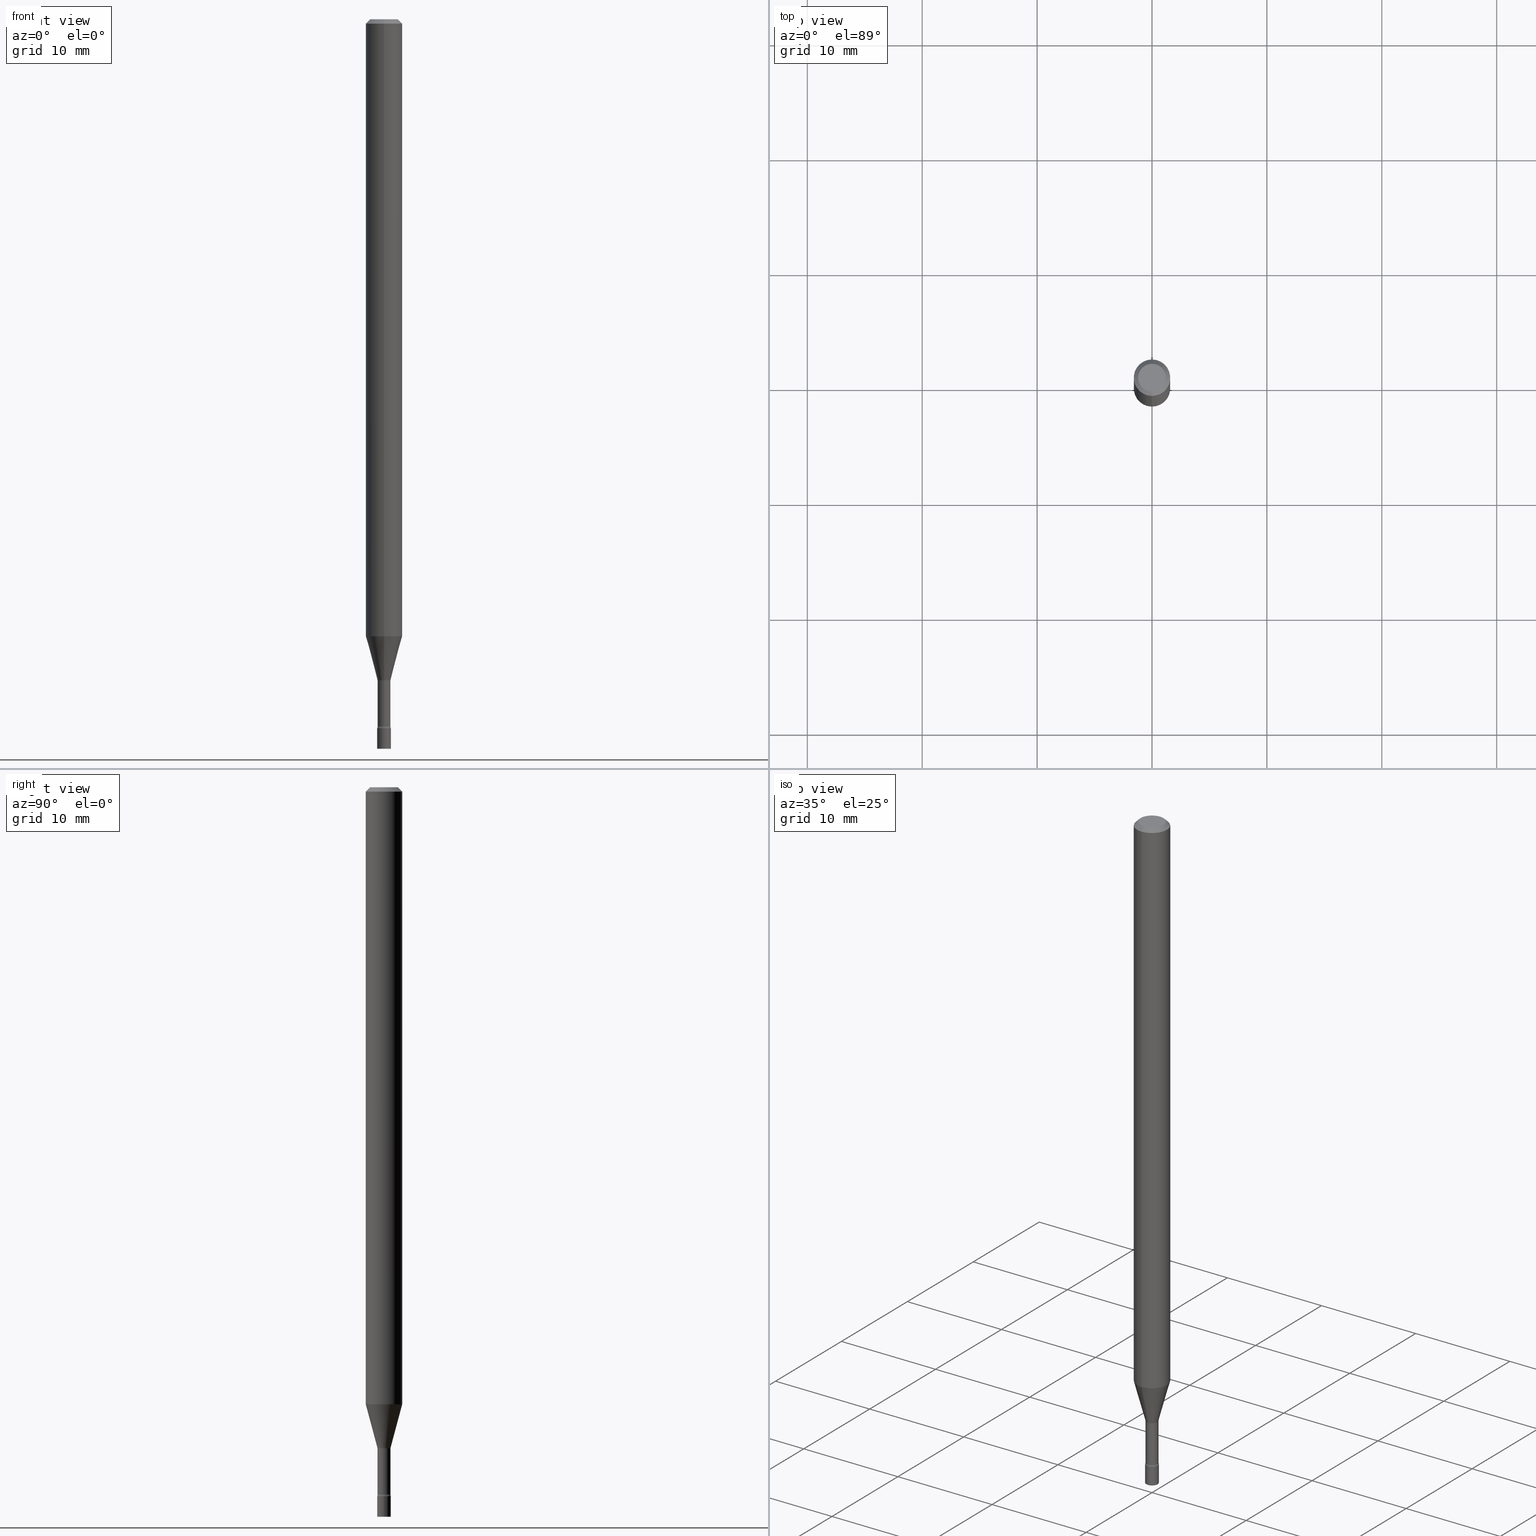
[diagram: canonical four-view strip — front | top / right | iso, engineering-drawing reading convention]
A machine part, canonical four-view strip (front | top / right | iso — engineering-drawing reading convention). The complete STEP part file that produces these views, byte-faithful:
ISO-10303-21;
HEADER;
FILE_DESCRIPTION (( 'STEP AP203' ),
    '1' );
FILE_NAME ('09663.STEP',
    '2024-03-09T00:32:37',
    ( '' ),
    ( '' ),
    'SwSTEP 2.0',
    'SolidWorks 2023',
    '' );
FILE_SCHEMA (( 'CONFIG_CONTROL_DESIGN' ));
ENDSEC;

DATA;
#1 =( NAMED_UNIT ( * ) SI_UNIT ( $, .STERADIAN. ) SOLID_ANGLE_UNIT ( ) );
#2 = LOCAL_TIME ( 19, 32, 37.00000000000000000, #404 ) ;
#3 = DIRECTION ( 'NONE',  ( 1.000000000000000000, 0.000000000000000000, 0.000000000000000000 ) ) ;
#4 = LINE ( 'NONE', #153, #252 ) ;
#5 = EDGE_LOOP ( 'NONE', ( #95, #102, #19, #335 ) ) ;
#6 = DIRECTION ( 'NONE',  ( -6.982962677686265922E-15, -1.000000000000000000, 0.000000000000000000 ) ) ;
#7 = ORIENTED_EDGE ( 'NONE', *, *, #67, .F. ) ;
#8 = APPROVAL_ROLE ( '' ) ;
#9 = CARTESIAN_POINT ( 'NONE',  ( -4.364351673553912750E-16, -0.06250000000000005551, -0.01499999999999981209 ) ) ;
#10 = ORIENTED_EDGE ( 'NONE', *, *, #82, .T. ) ;
#11 = CONICAL_SURFACE ( 'NONE', #156, 0.06250000000000000000, 0.7853981633974483900 ) ;
#12 = CIRCLE ( 'NONE', #311, 0.02210000000000007098 ) ;
#13 = DATE_AND_TIME ( #132, #367 ) ;
#14 = DIRECTION ( 'NONE',  ( -2.445468806185136597E-29, 3.491481338843145583E-15, 1.000000000000000000 ) ) ;
#15 = ORIENTED_EDGE ( 'NONE', *, *, #82, .F. ) ;
#16 = DIRECTION ( 'NONE',  ( -6.982962677686265133E-15, -1.000000000000000000, 0.000000000000000000 ) ) ;
#17 = ORIENTED_EDGE ( 'NONE', *, *, #381, .F. ) ;
#18 = FACE_OUTER_BOUND ( 'NONE', #375, .T. ) ;
#19 = ORIENTED_EDGE ( 'NONE', *, *, #87, .T. ) ;
#20 = ADVANCED_FACE ( 'NONE', ( #175 ), #219, .F. ) ;
#21 = CLOSED_SHELL ( 'NONE', ( #347, #135, #59, #451, #144, #240, #390, #262, #336, #426, #444, #477, #355, #20 ) ) ;
#22 = FACE_OUTER_BOUND ( 'NONE', #516, .T. ) ;
#23 = AXIS2_PLACEMENT_3D ( 'NONE', #291, #452, #249 ) ;
#24 = ORIENTED_EDGE ( 'NONE', *, *, #164, .T. ) ;
#25 = APPROVAL ( #486, 'UNSPECIFIED' ) ;
#26 = FACE_OUTER_BOUND ( 'NONE', #89, .T. ) ;
#27 = DIRECTION ( 'NONE',  ( -6.982962677686265922E-15, -1.000000000000000000, 3.491494143609276784E-15 ) ) ;
#28 = ADVANCED_FACE ( 'NONE', ( #299 ), #57, .T. ) ;
#29 = CC_DESIGN_APPROVAL ( #510, ( #304 ) ) ;
#30 = PLANE ( 'NONE',  #196 ) ;
#31 = CC_DESIGN_PERSON_AND_ORGANIZATION_ASSIGNMENT ( #278, #394, ( #359 ) ) ;
#32 = CONICAL_SURFACE ( 'NONE', #473, 0.06250000000000000000, 0.7853981633974483900 ) ;
#33 = CARTESIAN_POINT ( 'NONE',  ( 5.534301883144486809E-29, -7.901574216436330678E-15, -2.263092501787272948 ) ) ;
#34 = DIRECTION ( 'NONE',  ( -2.445459864664737566E-29, 3.491494143609276390E-15, 1.000000000000000000 ) ) ;
#35 = EDGE_CURVE ( 'NONE', #316, #280, #487, .T. ) ;
#36 = CARTESIAN_POINT ( 'NONE',  ( 0.000000000000000000, 0.000000000000000000, 0.000000000000000000 ) ) ;
#37 = DIRECTION ( 'NONE',  ( 1.000000000000000000, -6.982962677686265922E-15, 4.876176775795935793E-29 ) ) ;
#38 = AXIS2_PLACEMENT_3D ( 'NONE', #363, #236, #398 ) ;
#39 = CARTESIAN_POINT ( 'NONE',  ( 0.02350000000000000352, -1.640996229256272766E-16, 1.145901542312045115E-30 ) ) ;
#40 = ORIENTED_EDGE ( 'NONE', *, *, #67, .T. ) ;
#41 = ADVANCED_FACE ( 'NONE', ( #157 ), #351, .T. ) ;
#42 = LINE ( 'NONE', #194, #361 ) ;
#43 = EDGE_LOOP ( 'NONE', ( #288, #163, #237, #217 ) ) ;
#44 =( LENGTH_UNIT ( ) NAMED_UNIT ( * ) SI_UNIT ( $, .METRE. ) );
#45 = APPROVAL_PERSON_ORGANIZATION ( #447, #510, #8 ) ;
#46 = EDGE_LOOP ( 'NONE', ( #91, #482, #402, #364 ) ) ;
#47 = AXIS2_PLACEMENT_3D ( 'NONE', #438, #476, #117 ) ;
#48 = CARTESIAN_POINT ( 'NONE',  ( 5.534301883144486809E-29, -7.901574216436330678E-15, -2.263092501787272948 ) ) ;
#49 = CARTESIAN_POINT ( 'NONE',  ( -1.578925554262576832E-16, -0.02261111260567187989, -2.263092501787272948 ) ) ;
#50 = ORIENTED_EDGE ( 'NONE', *, *, #100, .T. ) ;
#51 = DIRECTION ( 'NONE',  ( -6.982962677686265922E-15, -1.000000000000000000, 0.000000000000000000 ) ) ;
#52 = EDGE_LOOP ( 'NONE', ( #370, #24, #425, #7 ) ) ;
#53 = DIRECTION ( 'NONE',  ( -6.982962677686265133E-15, -1.000000000000000000, 0.000000000000000000 ) ) ;
#54 = VERTEX_POINT ( 'NONE', #242 ) ;
#55 = CIRCLE ( 'NONE', #107, 0.02210000000000000159 ) ;
#56 = FACE_OUTER_BOUND ( 'NONE', #235, .T. ) ;
#57 = PLANE ( 'NONE',  #285 ) ;
#58 = DIRECTION ( 'NONE',  ( -2.445459864664737566E-29, 3.491494143609276390E-15, 1.000000000000000000 ) ) ;
#59 = ADVANCED_FACE ( 'NONE', ( #198 ), #275, .F. ) ;
#60 = ORIENTED_EDGE ( 'NONE', *, *, #201, .F. ) ;
#61 = DIRECTION ( 'NONE',  ( 1.000000000000000000, -6.982962677686228056E-15, 0.000000000000000000 ) ) ;
#62 = EDGE_LOOP ( 'NONE', ( #496, #126, #10, #241 ) ) ;
#63 = CC_DESIGN_PERSON_AND_ORGANIZATION_ASSIGNMENT ( #475, #78, ( #250 ) ) ;
#64 = VECTOR ( 'NONE', #282, 39.37007874015748143 ) ;
#65 = AXIS2_PLACEMENT_3D ( 'NONE', #33, #265, #229 ) ;
#66 = CARTESIAN_POINT ( 'NONE',  ( 1.640996229256866630E-16, 0.02349999999999152073, -2.429000000000000270 ) ) ;
#67 = EDGE_CURVE ( 'NONE', #488, #243, #234, .T. ) ;
#68 = DIRECTION ( 'NONE',  ( -4.851104656540964275E-15, -0.7071067811865500152, -0.7071067811865450192 ) ) ;
#69 = CARTESIAN_POINT ( 'NONE',  ( 7.070632131136643894E-46, -1.009506270546119456E-31, -2.891330270147777573E-17 ) ) ;
#70 = CIRCLE ( 'NONE', #227, 0.06250000000000000000 ) ;
#71 = DIRECTION ( 'NONE',  ( -2.445459864664737566E-29, 3.491494143609276784E-15, 1.000000000000000000 ) ) ;
#72 = CIRCLE ( 'NONE', #267, 0.02350000000000000352 ) ;
#73 = CARTESIAN_POINT ( 'NONE',  ( -1.543234751768077413E-16, -0.02210000000000852949, -2.422672283192177645 ) ) ;
#74 = EDGE_CURVE ( 'NONE', #283, #439, #165, .T. ) ;
#75 = MANIFOLD_SOLID_BREP ( 'Body-Move/Copy2[1]', #436 ) ;
#76 = MECHANICAL_CONTEXT ( 'NONE', #162, 'mechanical' ) ;
#77 = CARTESIAN_POINT ( 'NONE',  ( -1.640996229255678655E-16, -0.02350000000000847938, -2.429000000000000270 ) ) ;
#78 = PERSON_AND_ORGANIZATION_ROLE ( 'creator' ) ;
#79 = APPROVAL_PERSON_ORGANIZATION ( #433, #264, #269 ) ;
#80 = AXIS2_PLACEMENT_3D ( 'NONE', #94, #368, #494 ) ;
#81 = EDGE_LOOP ( 'NONE', ( #292, #251 ) ) ;
#82 = EDGE_CURVE ( 'NONE', #342, #243, #209, .T. ) ;
#83 = DIRECTION ( 'NONE',  ( -6.982962677686265922E-15, -1.000000000000000000, 4.370956789862821150E-15 ) ) ;
#84 = DIRECTION ( 'NONE',  ( -1.807323732225329350E-15, -0.2588190451025180194, 0.9659258262890689783 ) ) ;
#85 = ORIENTED_EDGE ( 'NONE', *, *, #393, .F. ) ;
#86 = DIRECTION ( 'NONE',  ( -2.445459864664737566E-29, 3.491494143609276390E-15, 1.000000000000000000 ) ) ;
#87 = EDGE_CURVE ( 'NONE', #342, #379, #395, .T. ) ;
#88 = DIRECTION ( 'NONE',  ( -6.982962677686265922E-15, -1.000000000000000000, 0.000000000000000000 ) ) ;
#89 = EDGE_LOOP ( 'NONE', ( #276, #118, #435, #200 ) ) ;
#90 = DIRECTION ( 'NONE',  ( -6.982962677686265922E-15, -1.000000000000000000, 0.000000000000000000 ) ) ;
#91 = ORIENTED_EDGE ( 'NONE', *, *, #320, .F. ) ;
#92 = EDGE_CURVE ( 'NONE', #407, #179, #97, .T. ) ;
#93 = APPROVAL_DATE_TIME ( #213, #510 ) ;
#94 = CARTESIAN_POINT ( 'NONE',  ( 2.636113549670525938E-16, 0.03709999999999209069, -2.266974787463810870 ) ) ;
#95 = ORIENTED_EDGE ( 'NONE', *, *, #100, .F. ) ;
#96 = DIRECTION ( 'NONE',  ( -2.445459864664737566E-29, 3.491494143609276390E-15, 1.000000000000000000 ) ) ;
#97 = CIRCLE ( 'NONE', #38, 0.06250000000000000000 ) ;
#98 = CONICAL_SURFACE ( 'NONE', #403, 0.02261111260566397996, 0.2617993877991501850 ) ;
#99 = AXIS2_PLACEMENT_3D ( 'NONE', #429, #71, #27 ) ;
#100 = EDGE_CURVE ( 'NONE', #54, #301, #4, .T. ) ;
#101 = CARTESIAN_POINT ( 'NONE',  ( 5.924547833782153992E-29, -8.458746088650004538E-15, -2.422672283192177645 ) ) ;
#102 = ORIENTED_EDGE ( 'NONE', *, *, #388, .T. ) ;
#103 = CALENDAR_DATE ( 2024, 8, 3 ) ;
#104 = DIRECTION ( 'NONE',  ( -2.445459864664737566E-29, 3.491494143609276784E-15, 1.000000000000000000 ) ) ;
#105 = DIRECTION ( 'NONE',  ( 2.438088387897960049E-29, -3.491481338843145188E-15, -1.000000000000000000 ) ) ;
#106 = CARTESIAN_POINT ( 'NONE',  ( 3.316907271900976096E-16, 0.04749999999999999362, -1.803026231721795148E-16 ) ) ;
#107 = AXIS2_PLACEMENT_3D ( 'NONE', #185, #505, #346 ) ;
#108 = CONICAL_SURFACE ( 'NONE', #467, 0.02261111260566397996, 0.2617993877991501850 ) ;
#109 = DIRECTION ( 'NONE',  ( 2.445459864664737566E-29, -3.491494143609276390E-15, -1.000000000000000000 ) ) ;
#110 = DIRECTION ( 'NONE',  ( -2.445459864664737566E-29, 3.491494143609276784E-15, 1.000000000000000000 ) ) ;
#111 = CARTESIAN_POINT ( 'NONE',  ( 5.924569496155794395E-29, -8.458715066898005273E-15, -2.422672283192177645 ) ) ;
#112 = PLANE ( 'NONE',  #497 ) ;
#113 = EDGE_CURVE ( 'NONE', #215, #407, #42, .T. ) ;
#114 = AXIS2_PLACEMENT_3D ( 'NONE', #421, #503, #61 ) ;
#115 = APPROVAL_ROLE ( '' ) ;
#116 =( NAMED_UNIT ( * ) PLANE_ANGLE_UNIT ( ) SI_UNIT ( $, .RADIAN. ) );
#117 = DIRECTION ( 'NONE',  ( -6.982962677686265133E-15, -1.000000000000000000, 0.000000000000000000 ) ) ;
#118 = ORIENTED_EDGE ( 'NONE', *, *, #393, .T. ) ;
#119 = DIRECTION ( 'NONE',  ( -2.445459864664737566E-29, 3.491494143609276784E-15, 1.000000000000000000 ) ) ;
#120 = VECTOR ( 'NONE', #68, 39.37007874015748143 ) ;
#121 = DIRECTION ( 'NONE',  ( -2.445459864664737566E-29, 3.491494143609276784E-15, 1.000000000000000000 ) ) ;
#122 = AXIS2_PLACEMENT_3D ( 'NONE', #172, #14, #338 ) ;
#123 = EDGE_LOOP ( 'NONE', ( #154, #173 ) ) ;
#124 = DATE_AND_TIME ( #517, #129 ) ;
#125 = DIRECTION ( 'NONE',  ( -2.445459864664737566E-29, 3.491494143609276784E-15, 1.000000000000000000 ) ) ;
#126 = ORIENTED_EDGE ( 'NONE', *, *, #508, .F. ) ;
#127 = ORIENTED_EDGE ( 'NONE', *, *, #220, .F. ) ;
#128 = DIRECTION ( 'NONE',  ( -2.445459864664737566E-29, 3.491494143609276784E-15, 1.000000000000000000 ) ) ;
#129 = LOCAL_TIME ( 19, 32, 37.00000000000000000, #202 ) ;
#130 = ORIENTED_EDGE ( 'NONE', *, *, #277, .T. ) ;
#131 = AXIS2_PLACEMENT_3D ( 'NONE', #401, #358, #434 ) ;
#132 = CALENDAR_DATE ( 2024, 8, 3 ) ;
#133 = CARTESIAN_POINT ( 'NONE',  ( 3.840629472727447874E-16, 0.04749999999999999362, -1.947592745229184119E-16 ) ) ;
#134 = CARTESIAN_POINT ( 'NONE',  ( 4.440892098501140893E-16, 0.06249999999999258926, -2.114225147374217961 ) ) ;
#135 = ADVANCED_FACE ( 'NONE', ( #480 ), #318, .T. ) ;
#136 = LINE ( 'NONE', #409, #454 ) ;
#137 = VERTEX_POINT ( 'NONE', #77 ) ;
#138 = AXIS2_PLACEMENT_3D ( 'NONE', #519, #125, #16 ) ;
#139 = COORDINATED_UNIVERSAL_TIME_OFFSET ( 5, 0, .BEHIND. ) ;
#140 = CYLINDRICAL_SURFACE ( 'NONE', #483, 0.06250000000000000000 ) ;
#141 = ORIENTED_EDGE ( 'NONE', *, *, #455, .F. ) ;
#142 = FACE_OUTER_BOUND ( 'NONE', #5, .T. ) ;
#143 = CARTESIAN_POINT ( 'NONE',  ( 1.620037437533623579E-16, 0.02209999999999160900, -2.422672283192177645 ) ) ;
#144 = ADVANCED_FACE ( 'NONE', ( #231 ), #392, .T. ) ;
#145 = CIRCLE ( 'NONE', #177, 0.01499999999999999424 ) ;
#146 = DIRECTION ( 'NONE',  ( -6.982962677686266711E-15, -1.000000000000000000, 3.491494143609277179E-15 ) ) ;
#147 = FACE_OUTER_BOUND ( 'NONE', #152, .T. ) ;
#148 = FACE_OUTER_BOUND ( 'NONE', #52, .T. ) ;
#149 = DATE_AND_TIME ( #512, #2 ) ;
#150 = DATE_AND_TIME ( #515, #266 ) ;
#151 = EDGE_CURVE ( 'NONE', #301, #407, #161, .T. ) ;
#152 = EDGE_LOOP ( 'NONE', ( #259, #195, #40, #15 ) ) ;
#153 = CARTESIAN_POINT ( 'NONE',  ( 1.606616180941370359E-16, 0.02261111260565608003, -2.263092501787272948 ) ) ;
#154 = ORIENTED_EDGE ( 'NONE', *, *, #180, .F. ) ;
#155 = TOROIDAL_SURFACE ( 'NONE', #99, 0.03710000000000000103, 0.01500000000000002720 ) ;
#156 = AXIS2_PLACEMENT_3D ( 'NONE', #228, #343, #389 ) ;
#157 = FACE_OUTER_BOUND ( 'NONE', #203, .T. ) ;
#158 = AXIS2_PLACEMENT_3D ( 'NONE', #246, #331, #178 ) ;
#159 = ORIENTED_EDGE ( 'NONE', *, *, #290, .T. ) ;
#160 = LENGTH_MEASURE_WITH_UNIT ( LENGTH_MEASURE( 0.02539999999999999897 ), #44 );
#161 = LINE ( 'NONE', #356, #437 ) ;
#162 = APPLICATION_CONTEXT ( 'configuration controlled 3d designs of mechanical parts and assemblies' ) ;
#163 = ORIENTED_EDGE ( 'NONE', *, *, #320, .T. ) ;
#164 = EDGE_CURVE ( 'NONE', #464, #352, #322, .T. ) ;
#165 = LINE ( 'NONE', #39, #417 ) ;
#166 = ORIENTED_EDGE ( 'NONE', *, *, #508, .T. ) ;
#167 = CARTESIAN_POINT ( 'NONE',  ( -2.590679153421016779E-16, -0.03710000000000852199, -2.422672283192177645 ) ) ;
#168 = AXIS2_PLACEMENT_3D ( 'NONE', #36, #230, #3 ) ;
#169 = AXIS2_PLACEMENT_3D ( 'NONE', #373, #244, #51 ) ;
#170 = DIRECTION ( 'NONE',  ( -2.445459864664737566E-29, 3.491494143609276784E-15, 1.000000000000000000 ) ) ;
#171 = EDGE_CURVE ( 'NONE', #439, #280, #72, .T. ) ;
#172 = CARTESIAN_POINT ( 'NONE',  ( 0.000000000000000000, 0.000000000000000000, 0.000000000000000000 ) ) ;
#173 = ORIENTED_EDGE ( 'NONE', *, *, #232, .F. ) ;
#174 = CYLINDRICAL_SURFACE ( 'NONE', #122, 0.02350000000000000352 ) ;
#175 = FACE_OUTER_BOUND ( 'NONE', #62, .T. ) ;
#176 =( GEOMETRIC_REPRESENTATION_CONTEXT ( 3 ) GLOBAL_UNCERTAINTY_ASSIGNED_CONTEXT ( ( #187 ) ) GLOBAL_UNIT_ASSIGNED_CONTEXT ( ( #400, #116, #1 ) ) REPRESENTATION_CONTEXT ( 'NONE', 'WORKASPACE' ) );
#177 = AXIS2_PLACEMENT_3D ( 'NONE', #419, #416, #214 ) ;
#178 = DIRECTION ( 'NONE',  ( -6.982962677686265922E-15, -1.000000000000000000, 3.483106191921935554E-15 ) ) ;
#179 = VERTEX_POINT ( 'NONE', #9 ) ;
#180 = EDGE_CURVE ( 'NONE', #137, #295, #490, .T. ) ;
#181 = CARTESIAN_POINT ( 'NONE',  ( -4.287811248607203282E-16, -0.06250000000000005551, -0.01499999999999981209 ) ) ;
#182 = LINE ( 'NONE', #181, #120 ) ;
#183 = AXIS2_PLACEMENT_3D ( 'NONE', #48, #274, #88 ) ;
#184 = VECTOR ( 'NONE', #58, 39.37007874015748143 ) ;
#185 = CARTESIAN_POINT ( 'NONE',  ( 5.543795856949623385E-29, -7.915129194139780158E-15, -2.266974787463810870 ) ) ;
#186 = CARTESIAN_POINT ( 'NONE',  ( -1.578925554262576832E-16, -0.02261111260567187989, -2.263092501787272948 ) ) ;
#187 = UNCERTAINTY_MEASURE_WITH_UNIT (LENGTH_MEASURE( 1.000000000000000082E-05 ), #400, 'distance_accuracy_value', 'NONE');
#188 = DIRECTION ( 'NONE',  ( 1.000000000000000000, -6.982962677686269866E-15, 0.000000000000000000 ) ) ;
#189 = COORDINATED_UNIVERSAL_TIME_OFFSET ( 5, 0, .BEHIND. ) ;
#190 = AXIS2_PLACEMENT_3D ( 'NONE', #279, #121, #6 ) ;
#191 = DIRECTION ( 'NONE',  ( 1.839019923739599526E-15, 0.2588190451025248473, 0.9659258262890670910 ) ) ;
#192 = DIRECTION ( 'NONE',  ( 4.937700262164548042E-15, 0.7071067811865451302, -0.7071067811865499042 ) ) ;
#193 = ORIENTED_EDGE ( 'NONE', *, *, #415, .F. ) ;
#194 = CARTESIAN_POINT ( 'NONE',  ( 4.364351673553919652E-16, 0.06249999999999995143, -0.01500000000000024751 ) ) ;
#195 = ORIENTED_EDGE ( 'NONE', *, *, #297, .T. ) ;
#196 = AXIS2_PLACEMENT_3D ( 'NONE', #509, #466, #427 ) ;
#197 = CARTESIAN_POINT ( 'NONE',  ( 5.170252742768539848E-29, -7.381804720328540946E-15, -2.114225147374217961 ) ) ;
#198 = FACE_OUTER_BOUND ( 'NONE', #43, .T. ) ;
#199 = AXIS2_PLACEMENT_3D ( 'NONE', #323, #328, #406 ) ;
#200 = ORIENTED_EDGE ( 'NONE', *, *, #113, .F. ) ;
#201 = EDGE_CURVE ( 'NONE', #352, #243, #378, .T. ) ;
#202 = COORDINATED_UNIVERSAL_TIME_OFFSET ( 5, 0, .BEHIND. ) ;
#203 = EDGE_LOOP ( 'NONE', ( #130, #329, #520, #324 ) ) ;
#204 = DIRECTION ( 'NONE',  ( 1.000000000000000000, -6.982962677686269866E-15, 0.000000000000000000 ) ) ;
#205 = EDGE_LOOP ( 'NONE', ( #245, #327 ) ) ;
#206 = ADVANCED_FACE ( 'NONE', ( #18 ), #174, .T. ) ;
#207 = DIRECTION ( 'NONE',  ( -6.982962677686265922E-15, -1.000000000000000000, 4.370956789862821150E-15 ) ) ;
#208 = ORIENTED_EDGE ( 'NONE', *, *, #502, .T. ) ;
#209 = CIRCLE ( 'NONE', #47, 0.01500000000000002720 ) ;
#210 = APPROVAL_STATUS ( 'not_yet_approved' ) ;
#211 = CARTESIAN_POINT ( 'NONE',  ( 5.170252742768539848E-29, -7.381804720328540946E-15, -2.114225147374217961 ) ) ;
#212 = CARTESIAN_POINT ( 'NONE',  ( 5.543816127150929473E-29, -7.915100166057801279E-15, -2.266974787463810870 ) ) ;
#213 = DATE_AND_TIME ( #103, #337 ) ;
#214 = DIRECTION ( 'NONE',  ( 7.105427357601001859E-15, 1.000000000000000000, 0.000000000000000000 ) ) ;
#215 = VERTEX_POINT ( 'NONE', #133 ) ;
#216 = CARTESIAN_POINT ( 'NONE',  ( 5.534301883144486809E-29, -7.901574216436330678E-15, -2.263092501787272948 ) ) ;
#217 = ORIENTED_EDGE ( 'NONE', *, *, #226, .F. ) ;
#218 = CC_DESIGN_SECURITY_CLASSIFICATION ( #304, ( #250 ) ) ;
#219 = TOROIDAL_SURFACE ( 'NONE', #513, 0.03710000000000000103, 0.01500000000000002720 ) ;
#220 = EDGE_CURVE ( 'NONE', #379, #179, #136, .T. ) ;
#221 = AXIS2_PLACEMENT_3D ( 'NONE', #428, #306, #188 ) ;
#222 = DIRECTION ( 'NONE',  ( -6.982962677686265922E-15, -1.000000000000000000, 3.491494143609276390E-15 ) ) ;
#223 = CC_DESIGN_PERSON_AND_ORGANIZATION_ASSIGNMENT ( #391, #484, ( #374 ) ) ;
#224 = CARTESIAN_POINT ( 'NONE',  ( 7.070632131136643894E-46, -1.009506270546119456E-31, -2.891330270147777573E-17 ) ) ;
#225 = DIRECTION ( 'NONE',  ( -6.982962677686266711E-15, -1.000000000000000000, 3.491494143609277179E-15 ) ) ;
#226 = EDGE_CURVE ( 'NONE', #352, #137, #287, .T. ) ;
#227 = AXIS2_PLACEMENT_3D ( 'NONE', #197, #119, #83 ) ;
#228 = CARTESIAN_POINT ( 'NONE',  ( 3.668189796997113601E-31, -5.237241215413926147E-17, -0.01500000000000003067 ) ) ;
#229 = DIRECTION ( 'NONE',  ( -6.982962677686265922E-15, -1.000000000000000000, 0.000000000000000000 ) ) ;
#230 = DIRECTION ( 'NONE',  ( 0.000000000000000000, 0.000000000000000000, 1.000000000000000000 ) ) ;
#231 = FACE_OUTER_BOUND ( 'NONE', #459, .T. ) ;
#232 = EDGE_CURVE ( 'NONE', #295, #137, #340, .T. ) ;
#233 = ORGANIZATION ( 'UNSPECIFIED', 'UNSPECIFIED', '' ) ;
#234 = CIRCLE ( 'NONE', #190, 0.02210000000000000159 ) ;
#235 = EDGE_LOOP ( 'NONE', ( #85, #193, #366, #273 ) ) ;
#236 = DIRECTION ( 'NONE',  ( -2.445459864664737566E-29, 3.491494143609276784E-15, 1.000000000000000000 ) ) ;
#237 = ORIENTED_EDGE ( 'NONE', *, *, #232, .T. ) ;
#238 = MANIFOLD_SOLID_BREP ( 'Body-Move/Copy2[2]', #21 ) ;
#239 = LINE ( 'NONE', #281, #293 ) ;
#240 = ADVANCED_FACE ( 'NONE', ( #22 ), #108, .T. ) ;
#241 = ORIENTED_EDGE ( 'NONE', *, *, #455, .T. ) ;
#242 = CARTESIAN_POINT ( 'NONE',  ( 3.023754139721257598E-16, 0.02261111260565608350, -2.263092501787272948 ) ) ;
#243 = VERTEX_POINT ( 'NONE', #334 ) ;
#244 = DIRECTION ( 'NONE',  ( -2.445459864664737566E-29, 3.491494143609276784E-15, 1.000000000000000000 ) ) ;
#245 = ORIENTED_EDGE ( 'NONE', *, *, #171, .T. ) ;
#246 = CARTESIAN_POINT ( 'NONE',  ( 3.668189796997113601E-31, -5.237241215413926147E-17, -0.01500000000000003067 ) ) ;
#247 = EDGE_LOOP ( 'NONE', ( #399, #159, #357, #396 ) ) ;
#248 = EDGE_CURVE ( 'NONE', #179, #407, #260, .T. ) ;
#249 = DIRECTION ( 'NONE',  ( 1.000000000000000000, -6.982962677686228056E-15, 0.000000000000000000 ) ) ;
#250 = PRODUCT_DEFINITION_FORMATION_WITH_SPECIFIED_SOURCE ( 'ANY', '', #374, .NOT_KNOWN. ) ;
#251 = ORIENTED_EDGE ( 'NONE', *, *, #470, .T. ) ;
#252 = VECTOR ( 'NONE', #191, 39.37007874015748143 ) ;
#253 = SECURITY_CLASSIFICATION_LEVEL ( 'unclassified' ) ;
#254 = CARTESIAN_POINT ( 'NONE',  ( -0.02350000000000000352, -8.437778216675308581E-15, -2.500000000000000000 ) ) ;
#255 = ORIENTED_EDGE ( 'NONE', *, *, #313, .T. ) ;
#256 = SHAPE_DEFINITION_REPRESENTATION ( #422, #408 ) ;
#257 = DIRECTION ( 'NONE',  ( -2.445468806185136597E-29, 3.491481338843145583E-15, 1.000000000000000000 ) ) ;
#258 = CARTESIAN_POINT ( 'NONE',  ( 0.02350000000000000352, -8.644907794975628038E-15, -2.429000000000000270 ) ) ;
#259 = ORIENTED_EDGE ( 'NONE', *, *, #388, .F. ) ;
#260 = CIRCLE ( 'NONE', #158, 0.06250000000000000000 ) ;
#261 = FACE_OUTER_BOUND ( 'NONE', #81, .T. ) ;
#262 = ADVANCED_FACE ( 'NONE', ( #499 ), #140, .T. ) ;
#263 = DIRECTION ( 'NONE',  ( -6.982962677686265922E-15, -1.000000000000000000, 0.000000000000000000 ) ) ;
#264 = APPROVAL ( #312, 'UNSPECIFIED' ) ;
#265 = DIRECTION ( 'NONE',  ( -2.445459864664737566E-29, 3.491494143609276784E-15, 1.000000000000000000 ) ) ;
#266 = LOCAL_TIME ( 19, 32, 37.00000000000000000, #189 ) ;
#267 = AXIS2_PLACEMENT_3D ( 'NONE', #411, #257, #204 ) ;
#268 = PLANE ( 'NONE',  #456 ) ;
#269 = APPROVAL_ROLE ( '' ) ;
#270 = EDGE_CURVE ( 'NONE', #352, #464, #12, .T. ) ;
#271 = DATE_TIME_ROLE ( 'creation_date' ) ;
#272 = CARTESIAN_POINT ( 'NONE',  ( 0.000000000000000000, 0.000000000000000000, 0.000000000000000000 ) ) ;
#273 = ORIENTED_EDGE ( 'NONE', *, *, #92, .T. ) ;
#274 = DIRECTION ( 'NONE',  ( -2.445459864664737566E-29, 3.491494143609276784E-15, 1.000000000000000000 ) ) ;
#275 = TOROIDAL_SURFACE ( 'NONE', #199, 0.03710000000000006348, 0.01499999999999999424 ) ;
#276 = ORIENTED_EDGE ( 'NONE', *, *, #470, .F. ) ;
#277 = EDGE_CURVE ( 'NONE', #283, #316, #350, .T. ) ;
#278 = PERSON_AND_ORGANIZATION ( #354, #233 ) ;
#279 = CARTESIAN_POINT ( 'NONE',  ( 5.543795856949623385E-29, -7.915129194139780158E-15, -2.266974787463810870 ) ) ;
#280 = VERTEX_POINT ( 'NONE', #289 ) ;
#281 = CARTESIAN_POINT ( 'NONE',  ( 1.570299446029823742E-16, 0.02210000000000003628, -7.716202057376514729E-17 ) ) ;
#282 = DIRECTION ( 'NONE',  ( -2.445468806185136877E-29, 3.491481338843145188E-15, 1.000000000000000000 ) ) ;
#283 = VERTEX_POINT ( 'NONE', #450 ) ;
#284 = CC_DESIGN_APPROVAL ( #264, ( #250 ) ) ;
#285 = AXIS2_PLACEMENT_3D ( 'NONE', #462, #105, #309 ) ;
#286 = CARTESIAN_POINT ( 'NONE',  ( 1.669775429036828812E-16, 0.02349999999999151726, -2.429000000000000270 ) ) ;
#287 = CIRCLE ( 'NONE', #345, 0.01499999999999999424 ) ;
#288 = ORIENTED_EDGE ( 'NONE', *, *, #164, .F. ) ;
#289 = CARTESIAN_POINT ( 'NONE',  ( -0.02350000000000000352, -8.437778216675308581E-15, -2.429000000000000270 ) ) ;
#290 = EDGE_CURVE ( 'NONE', #301, #379, #405, .T. ) ;
#291 = CARTESIAN_POINT ( 'NONE',  ( 6.113672015462842613E-29, -8.728703347107864943E-15, -2.500000000000000000 ) ) ;
#292 = ORIENTED_EDGE ( 'NONE', *, *, #415, .T. ) ;
#293 = VECTOR ( 'NONE', #86, 39.37007874015748143 ) ;
#294 = CARTESIAN_POINT ( 'NONE',  ( 5.940022011270647175E-29, -8.480839274826933485E-15, -2.429000000000000270 ) ) ;
#295 = VERTEX_POINT ( 'NONE', #286 ) ;
#296 = COORDINATED_UNIVERSAL_TIME_OFFSET ( 5, 0, .BEHIND. ) ;
#297 = EDGE_CURVE ( 'NONE', #54, #488, #305, .T. ) ;
#298 = DIRECTION ( 'NONE',  ( -6.982962677686265922E-15, -1.000000000000000000, 3.491494143609276784E-15 ) ) ;
#299 = FACE_OUTER_BOUND ( 'NONE', #410, .T. ) ;
#300 = DIRECTION ( 'NONE',  ( -2.445459864664737566E-29, 3.491494143609276784E-15, 1.000000000000000000 ) ) ;
#301 = VERTEX_POINT ( 'NONE', #134 ) ;
#302 = APPLICATION_CONTEXT ( 'configuration controlled 3d designs of mechanical parts and assemblies' ) ;
#303 = FACE_OUTER_BOUND ( 'NONE', #205, .T. ) ;
#304 = SECURITY_CLASSIFICATION ( '', '', #253 ) ;
#305 = CIRCLE ( 'NONE', #80, 0.01500000000000002720 ) ;
#306 = DIRECTION ( 'NONE',  ( -2.445468806185136597E-29, 3.491481338843145583E-15, 1.000000000000000000 ) ) ;
#307 = FACE_OUTER_BOUND ( 'NONE', #46, .T. ) ;
#308 = CYLINDRICAL_SURFACE ( 'NONE', #446, 0.02210000000000003628 ) ;
#309 = DIRECTION ( 'NONE',  ( -1.000000000000000000, 6.982962677686265922E-15, -4.876176775795935793E-29 ) ) ;
#310 = CC_DESIGN_APPROVAL ( #25, ( #359 ) ) ;
#311 = AXIS2_PLACEMENT_3D ( 'NONE', #101, #341, #461 ) ;
#312 = APPROVAL_STATUS ( 'not_yet_approved' ) ;
#313 = EDGE_CURVE ( 'NONE', #316, #283, #369, .T. ) ;
#314 = APPROVAL_DATE_TIME ( #150, #264 ) ;
#315 = CARTESIAN_POINT ( 'NONE',  ( -0.02350000000000000352, 1.669775429036235687E-16, -1.155949746209903035E-30 ) ) ;
#316 = VERTEX_POINT ( 'NONE', #254 ) ;
#317 = DIRECTION ( 'NONE',  ( -2.445459864664737566E-29, 3.491494143609276784E-15, 1.000000000000000000 ) ) ;
#318 = CYLINDRICAL_SURFACE ( 'NONE', #500, 0.02210000000000003628 ) ;
#319 = ORIENTED_EDGE ( 'NONE', *, *, #35, .F. ) ;
#320 = EDGE_CURVE ( 'NONE', #464, #295, #145, .T. ) ;
#321 = DIMENSIONAL_EXPONENTS ( 1.000000000000000000, 0.000000000000000000, 0.000000000000000000, 0.000000000000000000, 0.000000000000000000, 0.000000000000000000, 0.000000000000000000 ) ;
#322 = CIRCLE ( 'NONE', #138, 0.02210000000000007098 ) ;
#323 = CARTESIAN_POINT ( 'NONE',  ( 5.924569496155794395E-29, -8.458715066898005273E-15, -2.422672283192177645 ) ) ;
#324 = ORIENTED_EDGE ( 'NONE', *, *, #74, .F. ) ;
#325 = APPLICATION_PROTOCOL_DEFINITION ( 'international standard', 'config_control_design', 1994, #162 ) ;
#326 = CARTESIAN_POINT ( 'NONE',  ( 0.000000000000000000, 0.000000000000000000, 0.000000000000000000 ) ) ;
#327 = ORIENTED_EDGE ( 'NONE', *, *, #381, .T. ) ;
#328 = DIRECTION ( 'NONE',  ( -2.445459864664737566E-29, 3.491494143609276784E-15, 1.000000000000000000 ) ) ;
#329 = ORIENTED_EDGE ( 'NONE', *, *, #35, .T. ) ;
#330 = AXIS2_PLACEMENT_3D ( 'NONE', #111, #317, #479 ) ;
#331 = DIRECTION ( 'NONE',  ( -2.445459864664737566E-29, 3.491494143609276784E-15, 1.000000000000000000 ) ) ;
#332 = AXIS2_PLACEMENT_3D ( 'NONE', #294, #365, #492 ) ;
#333 = DIRECTION ( 'NONE',  ( -2.445459864664737566E-29, 3.491494143609276784E-15, 1.000000000000000000 ) ) ;
#334 = CARTESIAN_POINT ( 'NONE',  ( -1.543234751768110447E-16, -0.02210000000000791540, -2.266974787463810870 ) ) ;
#335 = ORIENTED_EDGE ( 'NONE', *, *, #290, .F. ) ;
#336 = ADVANCED_FACE ( 'NONE', ( #56 ), #32, .T. ) ;
#337 = LOCAL_TIME ( 19, 32, 37.00000000000000000, #296 ) ;
#338 = DIRECTION ( 'NONE',  ( 1.000000000000000000, -6.982962677686265922E-15, 4.876176775795935793E-29 ) ) ;
#339 = DIRECTION ( 'NONE',  ( -2.445459864664737566E-29, 3.491494143609276784E-15, 1.000000000000000000 ) ) ;
#340 = CIRCLE ( 'NONE', #169, 0.02350000000000000352 ) ;
#341 = DIRECTION ( 'NONE',  ( -2.445459864664737566E-29, 3.491494143609276784E-15, 1.000000000000000000 ) ) ;
#342 = VERTEX_POINT ( 'NONE', #186 ) ;
#343 = DIRECTION ( 'NONE',  ( 2.445459864664737566E-29, -3.491494143609276784E-15, -1.000000000000000000 ) ) ;
#344 = DIRECTION ( 'NONE',  ( 6.982962677686265922E-15, 1.000000000000000000, -3.491494143609276390E-15 ) ) ;
#345 = AXIS2_PLACEMENT_3D ( 'NONE', #167, #457, #53 ) ;
#346 = DIRECTION ( 'NONE',  ( -6.982962677686265922E-15, -1.000000000000000000, 0.000000000000000000 ) ) ;
#347 = ADVANCED_FACE ( 'NONE', ( #147 ), #155, .F. ) ;
#348 = DIRECTION ( 'NONE',  ( 6.982962677686265922E-15, 1.000000000000000000, -3.483106191921935554E-15 ) ) ;
#349 = CIRCLE ( 'NONE', #183, 0.02261111260566397996 ) ;
#350 = CIRCLE ( 'NONE', #114, 0.02350000000000000352 ) ;
#351 = CYLINDRICAL_SURFACE ( 'NONE', #430, 0.02350000000000000352 ) ;
#352 = VERTEX_POINT ( 'NONE', #73 ) ;
#353 = PERSON_AND_ORGANIZATION ( #354, #233 ) ;
#354 = PERSON ( 'UNSPECIFIED', 'UNSPECIFIED', 'UNSPECIFIED', ('UNSPECIFIED'), ('UNSPECIFIED'), ('UNSPECIFIED') ) ;
#355 = ADVANCED_FACE ( 'NONE', ( #148 ), #308, .T. ) ;
#356 = CARTESIAN_POINT ( 'NONE',  ( 4.440892098500625669E-16, 0.06250000000000000000, -2.182183839755797990E-16 ) ) ;
#357 = ORIENTED_EDGE ( 'NONE', *, *, #220, .T. ) ;
#358 = DIRECTION ( 'NONE',  ( -2.445459864664737566E-29, 3.491494143609276784E-15, 1.000000000000000000 ) ) ;
#359 = PRODUCT_DEFINITION ( 'UNKNOWN', '', #250, #441 ) ;
#360 = ORIENTED_EDGE ( 'NONE', *, *, #270, .T. ) ;
#361 = VECTOR ( 'NONE', #192, 39.37007874015748143 ) ;
#362 = ORIENTED_EDGE ( 'NONE', *, *, #277, .F. ) ;
#363 = CARTESIAN_POINT ( 'NONE',  ( 3.668189796997113601E-31, -5.237241215413926147E-17, -0.01500000000000003067 ) ) ;
#364 = ORIENTED_EDGE ( 'NONE', *, *, #180, .T. ) ;
#365 = DIRECTION ( 'NONE',  ( -2.445459864664737566E-29, 3.491494143609276784E-15, 1.000000000000000000 ) ) ;
#366 = ORIENTED_EDGE ( 'NONE', *, *, #113, .T. ) ;
#367 = LOCAL_TIME ( 19, 32, 37.00000000000000000, #139 ) ;
#368 = DIRECTION ( 'NONE',  ( 1.000000000000000000, -7.105427357601001070E-15, 4.926315665355240651E-29 ) ) ;
#369 = CIRCLE ( 'NONE', #23, 0.02350000000000000352 ) ;
#370 = ORIENTED_EDGE ( 'NONE', *, *, #493, .F. ) ;
#371 = CARTESIAN_POINT ( 'NONE',  ( 3.668189796997113601E-31, -5.237241215413926147E-17, -0.01500000000000003067 ) ) ;
#372 = ORIENTED_EDGE ( 'NONE', *, *, #502, .F. ) ;
#373 = CARTESIAN_POINT ( 'NONE',  ( 5.940022011270647175E-29, -8.480839274826933485E-15, -2.429000000000000270 ) ) ;
#374 = PRODUCT ( '09663', '09663', '', ( #76 ) ) ;
#375 = EDGE_LOOP ( 'NONE', ( #319, #255, #478, #17 ) ) ;
#376 = CC_DESIGN_PERSON_AND_ORGANIZATION_ASSIGNMENT ( #498, #491, ( #304 ) ) ;
#377 = CIRCLE ( 'NONE', #465, 0.04749999999999999362 ) ;
#378 = LINE ( 'NONE', #448, #184 ) ;
#379 = VERTEX_POINT ( 'NONE', #469 ) ;
#380 = CARTESIAN_POINT ( 'NONE',  ( 4.440892098501146810E-16, 0.06249999999999995837, -0.01500000000000024751 ) ) ;
#381 = EDGE_CURVE ( 'NONE', #280, #439, #458, .T. ) ;
#382 = DIRECTION ( 'NONE',  ( -6.982962677686265922E-15, -1.000000000000000000, 3.491494143609276784E-15 ) ) ;
#383 = CC_DESIGN_DATE_AND_TIME_ASSIGNMENT ( #13, #414, ( #304 ) ) ;
#384 = DIRECTION ( 'NONE',  ( -2.445459864664737566E-29, 3.491494143609276784E-15, 1.000000000000000000 ) ) ;
#385 = AXIS2_PLACEMENT_3D ( 'NONE', #211, #333, #207 ) ;
#386 = AXIS2_PLACEMENT_3D ( 'NONE', #69, #300, #225 ) ;
#387 = CARTESIAN_POINT ( 'NONE',  ( 0.000000000000000000, 0.000000000000000000, 0.000000000000000000 ) ) ;
#388 = EDGE_CURVE ( 'NONE', #54, #342, #514, .T. ) ;
#389 = DIRECTION ( 'NONE',  ( 6.982962677686265922E-15, 1.000000000000000000, -3.483106191921935554E-15 ) ) ;
#390 = ADVANCED_FACE ( 'NONE', ( #142 ), #98, .T. ) ;
#391 = PERSON_AND_ORGANIZATION ( #354, #233 ) ;
#392 = CYLINDRICAL_SURFACE ( 'NONE', #131, 0.06250000000000000000 ) ;
#393 = EDGE_CURVE ( 'NONE', #420, #179, #182, .T. ) ;
#394 = PERSON_AND_ORGANIZATION_ROLE ( 'creator' ) ;
#395 = LINE ( 'NONE', #49, #424 ) ;
#396 = ORIENTED_EDGE ( 'NONE', *, *, #92, .F. ) ;
#397 = CC_DESIGN_DATE_AND_TIME_ASSIGNMENT ( #149, #271, ( #359 ) ) ;
#398 = DIRECTION ( 'NONE',  ( -6.982962677686265922E-15, -1.000000000000000000, 3.483106191921935554E-15 ) ) ;
#399 = ORIENTED_EDGE ( 'NONE', *, *, #151, .F. ) ;
#400 =( CONVERSION_BASED_UNIT ( 'INCH', #160 ) LENGTH_UNIT ( ) NAMED_UNIT ( #321 ) );
#401 = CARTESIAN_POINT ( 'NONE',  ( 0.000000000000000000, 0.000000000000000000, 0.000000000000000000 ) ) ;
#402 = ORIENTED_EDGE ( 'NONE', *, *, #226, .T. ) ;
#403 = AXIS2_PLACEMENT_3D ( 'NONE', #472, #110, #263 ) ;
#404 = COORDINATED_UNIVERSAL_TIME_OFFSET ( 5, 0, .BEHIND. ) ;
#405 = CIRCLE ( 'NONE', #385, 0.06250000000000000000 ) ;
#406 = DIRECTION ( 'NONE',  ( -6.982962677686265922E-15, -1.000000000000000000, 3.491494143609276784E-15 ) ) ;
#407 = VERTEX_POINT ( 'NONE', #380 ) ;
#408 = ADVANCED_BREP_SHAPE_REPRESENTATION ( '09663', ( #75, #238, #168 ), #176 ) ;
#409 = CARTESIAN_POINT ( 'NONE',  ( -4.364351673553916201E-16, -0.06250000000000000000, 2.182183839755797990E-16 ) ) ;
#410 = EDGE_LOOP ( 'NONE', ( #362, #489 ) ) ;
#411 = CARTESIAN_POINT ( 'NONE',  ( 5.940043730223697314E-29, -8.480808172050001970E-15, -2.429000000000000270 ) ) ;
#412 = ORIENTED_EDGE ( 'NONE', *, *, #493, .T. ) ;
#413 = CIRCLE ( 'NONE', #386, 0.04749999999999999362 ) ;
#414 = DATE_TIME_ROLE ( 'classification_date' ) ;
#415 = EDGE_CURVE ( 'NONE', #215, #420, #413, .T. ) ;
#416 = DIRECTION ( 'NONE',  ( 1.000000000000000000, -7.105427357601001070E-15, 4.926315665355240651E-29 ) ) ;
#417 = VECTOR ( 'NONE', #442, 39.37007874015748143 ) ;
#418 = CC_DESIGN_PERSON_AND_ORGANIZATION_ASSIGNMENT ( #353, #460, ( #250 ) ) ;
#419 = CARTESIAN_POINT ( 'NONE',  ( 2.636113549670568339E-16, 0.03709999999999160497, -2.422672283192177645 ) ) ;
#420 = VERTEX_POINT ( 'NONE', #511 ) ;
#421 = CARTESIAN_POINT ( 'NONE',  ( 6.113672015462842613E-29, -8.728703347107864943E-15, -2.500000000000000000 ) ) ;
#422 = PRODUCT_DEFINITION_SHAPE ( 'NONE', 'NONE',  #359 ) ;
#423 = FACE_OUTER_BOUND ( 'NONE', #123, .T. ) ;
#424 = VECTOR ( 'NONE', #84, 39.37007874015749564 ) ;
#425 = ORIENTED_EDGE ( 'NONE', *, *, #201, .T. ) ;
#426 = ADVANCED_FACE ( 'NONE', ( #261 ), #112, .F. ) ;
#427 = DIRECTION ( 'NONE',  ( 1.000000000000000000, -6.982962677686265922E-15, 4.876176775795935793E-29 ) ) ;
#428 = CARTESIAN_POINT ( 'NONE',  ( 5.940043730223697314E-29, -8.480808172050001970E-15, -2.429000000000000270 ) ) ;
#429 = CARTESIAN_POINT ( 'NONE',  ( 5.543816127150929473E-29, -7.915100166057801279E-15, -2.266974787463810870 ) ) ;
#430 = AXIS2_PLACEMENT_3D ( 'NONE', #272, #445, #37 ) ;
#431 = APPLICATION_PROTOCOL_DEFINITION ( 'international standard', 'config_control_design', 1994, #302 ) ;
#432 = DIRECTION ( 'NONE',  ( -6.982962677686265922E-15, -1.000000000000000000, 3.491494143609276784E-15 ) ) ;
#433 = PERSON_AND_ORGANIZATION ( #354, #233 ) ;
#434 = DIRECTION ( 'NONE',  ( -6.982962677686265922E-15, -1.000000000000000000, 3.491494143609276784E-15 ) ) ;
#435 = ORIENTED_EDGE ( 'NONE', *, *, #248, .T. ) ;
#436 = CLOSED_SHELL ( 'NONE', ( #41, #468, #206, #28 ) ) ;
#437 = VECTOR ( 'NONE', #485, 39.37007874015748143 ) ;
#438 = CARTESIAN_POINT ( 'NONE',  ( -2.590679153421050798E-16, -0.03710000000000791831, -2.266974787463810870 ) ) ;
#439 = VERTEX_POINT ( 'NONE', #258 ) ;
#440 = APPROVAL_DATE_TIME ( #124, #25 ) ;
#441 = DESIGN_CONTEXT ( 'detailed design', #302, 'design' ) ;
#442 = DIRECTION ( 'NONE',  ( -2.445468806185136877E-29, 3.491481338843145188E-15, 1.000000000000000000 ) ) ;
#443 = ORIENTED_EDGE ( 'NONE', *, *, #248, .F. ) ;
#444 = ADVANCED_FACE ( 'NONE', ( #423 ), #268, .F. ) ;
#445 = DIRECTION ( 'NONE',  ( -2.445468806185136597E-29, 3.491481338843145583E-15, 1.000000000000000000 ) ) ;
#446 = AXIS2_PLACEMENT_3D ( 'NONE', #387, #384, #382 ) ;
#447 = PERSON_AND_ORGANIZATION ( #354, #233 ) ;
#448 = CARTESIAN_POINT ( 'NONE',  ( -1.543234751768667333E-16, -0.02210000000000003628, 7.716202057376514729E-17 ) ) ;
#449 = ORIENTED_EDGE ( 'NONE', *, *, #151, .T. ) ;
#450 = CARTESIAN_POINT ( 'NONE',  ( 0.02350000000000000352, -8.892802970033491011E-15, -2.500000000000000000 ) ) ;
#451 = ADVANCED_FACE ( 'NONE', ( #26 ), #11, .T. ) ;
#452 = DIRECTION ( 'NONE',  ( -2.445468806185136597E-29, 3.491481338843145583E-15, 1.000000000000000000 ) ) ;
#453 = EDGE_LOOP ( 'NONE', ( #360, #412, #141, #60 ) ) ;
#454 = VECTOR ( 'NONE', #96, 39.37007874015748143 ) ;
#455 = EDGE_CURVE ( 'NONE', #243, #488, #55, .T. ) ;
#456 = AXIS2_PLACEMENT_3D ( 'NONE', #66, #34, #222 ) ;
#457 = DIRECTION ( 'NONE',  ( -1.000000000000000000, 6.982962677686265922E-15, -4.883557194083112340E-29 ) ) ;
#458 = CIRCLE ( 'NONE', #221, 0.02350000000000000352 ) ;
#459 = EDGE_LOOP ( 'NONE', ( #208, #449, #443, #127 ) ) ;
#460 = PERSON_AND_ORGANIZATION_ROLE ( 'design_supplier' ) ;
#461 = DIRECTION ( 'NONE',  ( -6.982962677686265133E-15, -1.000000000000000000, 0.000000000000000000 ) ) ;
#462 = CARTESIAN_POINT ( 'NONE',  ( 1.640996229256884133E-16, 0.02349999999999127440, -2.500000000000000000 ) ) ;
#463 = DIRECTION ( 'NONE',  ( 2.445459864664737566E-29, -3.491494143609276784E-15, -1.000000000000000000 ) ) ;
#464 = VERTEX_POINT ( 'NONE', #143 ) ;
#465 = AXIS2_PLACEMENT_3D ( 'NONE', #224, #507, #146 ) ;
#466 = DIRECTION ( 'NONE',  ( -2.438088387897960049E-29, 3.491481338843145188E-15, 1.000000000000000000 ) ) ;
#467 = AXIS2_PLACEMENT_3D ( 'NONE', #216, #104, #90 ) ;
#468 = ADVANCED_FACE ( 'NONE', ( #303 ), #30, .T. ) ;
#469 = CARTESIAN_POINT ( 'NONE',  ( -4.364351673553400976E-16, -0.06250000000000741074, -2.114225147374217517 ) ) ;
#470 = EDGE_CURVE ( 'NONE', #420, #215, #377, .T. ) ;
#471 = CARTESIAN_POINT ( 'NONE',  ( 1.570299446030415388E-16, 0.02209999999999208778, -2.266974787463810870 ) ) ;
#472 = CARTESIAN_POINT ( 'NONE',  ( 5.534301883144486809E-29, -7.901574216436330678E-15, -2.263092501787272948 ) ) ;
#473 = AXIS2_PLACEMENT_3D ( 'NONE', #371, #463, #348 ) ;
#474 = PERSON_AND_ORGANIZATION ( #354, #233 ) ;
#475 = PERSON_AND_ORGANIZATION ( #354, #233 ) ;
#476 = DIRECTION ( 'NONE',  ( -1.000000000000000000, 6.982962677686265922E-15, -4.883557194083112340E-29 ) ) ;
#477 = ADVANCED_FACE ( 'NONE', ( #307 ), #506, .F. ) ;
#478 = ORIENTED_EDGE ( 'NONE', *, *, #74, .T. ) ;
#479 = DIRECTION ( 'NONE',  ( -6.982962677686265922E-15, -1.000000000000000000, 3.491494143609276784E-15 ) ) ;
#480 = FACE_OUTER_BOUND ( 'NONE', #453, .T. ) ;
#481 = APPROVAL_PERSON_ORGANIZATION ( #474, #25, #115 ) ;
#482 = ORIENTED_EDGE ( 'NONE', *, *, #270, .F. ) ;
#483 = AXIS2_PLACEMENT_3D ( 'NONE', #495, #170, #298 ) ;
#484 = PERSON_AND_ORGANIZATION_ROLE ( 'design_owner' ) ;
#485 = DIRECTION ( 'NONE',  ( -2.445459864664737566E-29, 3.491494143609276390E-15, 1.000000000000000000 ) ) ;
#486 = APPROVAL_STATUS ( 'not_yet_approved' ) ;
#487 = LINE ( 'NONE', #315, #64 ) ;
#488 = VERTEX_POINT ( 'NONE', #471 ) ;
#489 = ORIENTED_EDGE ( 'NONE', *, *, #313, .F. ) ;
#490 = CIRCLE ( 'NONE', #332, 0.02350000000000000352 ) ;
#491 = PERSON_AND_ORGANIZATION_ROLE ( 'classification_officer' ) ;
#492 = DIRECTION ( 'NONE',  ( -6.982962677686265922E-15, -1.000000000000000000, 0.000000000000000000 ) ) ;
#493 = EDGE_CURVE ( 'NONE', #464, #488, #239, .T. ) ;
#494 = DIRECTION ( 'NONE',  ( 7.105427357601000281E-15, 1.000000000000000000, 0.000000000000000000 ) ) ;
#495 = CARTESIAN_POINT ( 'NONE',  ( 0.000000000000000000, 0.000000000000000000, 0.000000000000000000 ) ) ;
#496 = ORIENTED_EDGE ( 'NONE', *, *, #297, .F. ) ;
#497 = AXIS2_PLACEMENT_3D ( 'NONE', #106, #109, #344 ) ;
#498 = PERSON_AND_ORGANIZATION ( #354, #233 ) ;
#499 = FACE_OUTER_BOUND ( 'NONE', #247, .T. ) ;
#500 = AXIS2_PLACEMENT_3D ( 'NONE', #326, #128, #432 ) ;
#501 = DIRECTION ( 'NONE',  ( -6.982962677686265922E-15, -1.000000000000000000, 3.491494143609276784E-15 ) ) ;
#502 = EDGE_CURVE ( 'NONE', #379, #301, #70, .T. ) ;
#503 = DIRECTION ( 'NONE',  ( -2.445468806185136597E-29, 3.491481338843145583E-15, 1.000000000000000000 ) ) ;
#504 = ORIENTED_EDGE ( 'NONE', *, *, #87, .F. ) ;
#505 = DIRECTION ( 'NONE',  ( -2.445459864664737566E-29, 3.491494143609276784E-15, 1.000000000000000000 ) ) ;
#506 = TOROIDAL_SURFACE ( 'NONE', #330, 0.03710000000000006348, 0.01499999999999999424 ) ;
#507 = DIRECTION ( 'NONE',  ( -2.445459864664737566E-29, 3.491494143609276784E-15, 1.000000000000000000 ) ) ;
#508 = EDGE_CURVE ( 'NONE', #342, #54, #349, .T. ) ;
#509 = CARTESIAN_POINT ( 'NONE',  ( 5.940043730223697314E-29, -8.480808172050001970E-15, -2.429000000000000270 ) ) ;
#510 = APPROVAL ( #210, 'UNSPECIFIED' ) ;
#511 = CARTESIAN_POINT ( 'NONE',  ( -3.773273898774340269E-16, -0.04749999999999999362, 1.369326691199628481E-16 ) ) ;
#512 = CALENDAR_DATE ( 2024, 8, 3 ) ;
#513 = AXIS2_PLACEMENT_3D ( 'NONE', #212, #339, #501 ) ;
#514 = CIRCLE ( 'NONE', #65, 0.02261111260566397996 ) ;
#515 = CALENDAR_DATE ( 2024, 8, 3 ) ;
#516 = EDGE_LOOP ( 'NONE', ( #166, #50, #372, #504 ) ) ;
#517 = CALENDAR_DATE ( 2024, 8, 3 ) ;
#518 = PRODUCT_RELATED_PRODUCT_CATEGORY ( 'detail', '', ( #374 ) ) ;
#519 = CARTESIAN_POINT ( 'NONE',  ( 5.924547833782153992E-29, -8.458746088650004538E-15, -2.422672283192177645 ) ) ;
#520 = ORIENTED_EDGE ( 'NONE', *, *, #171, .F. ) ;
ENDSEC;
END-ISO-10303-21;
